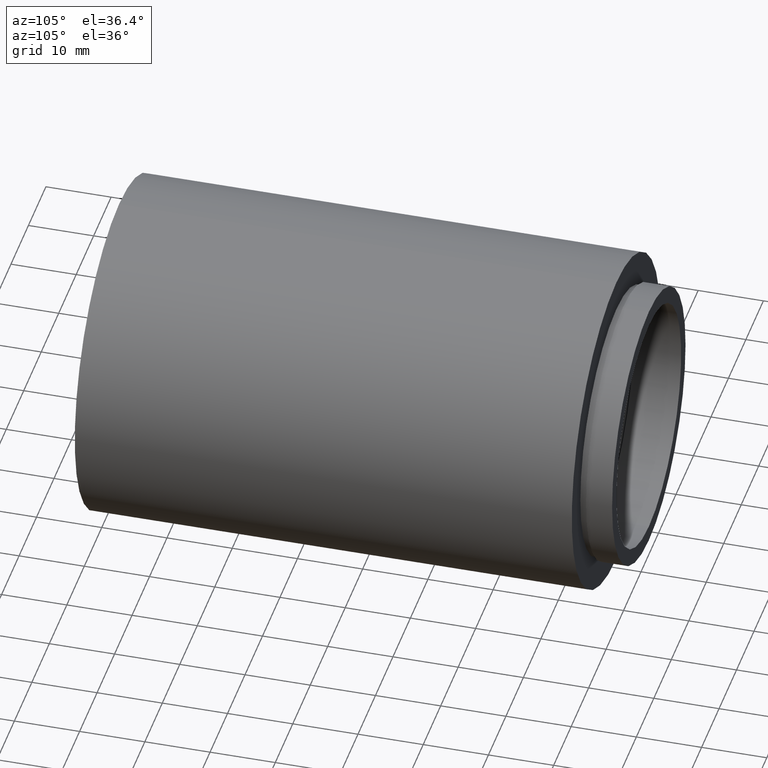
[diagram: clean part render]
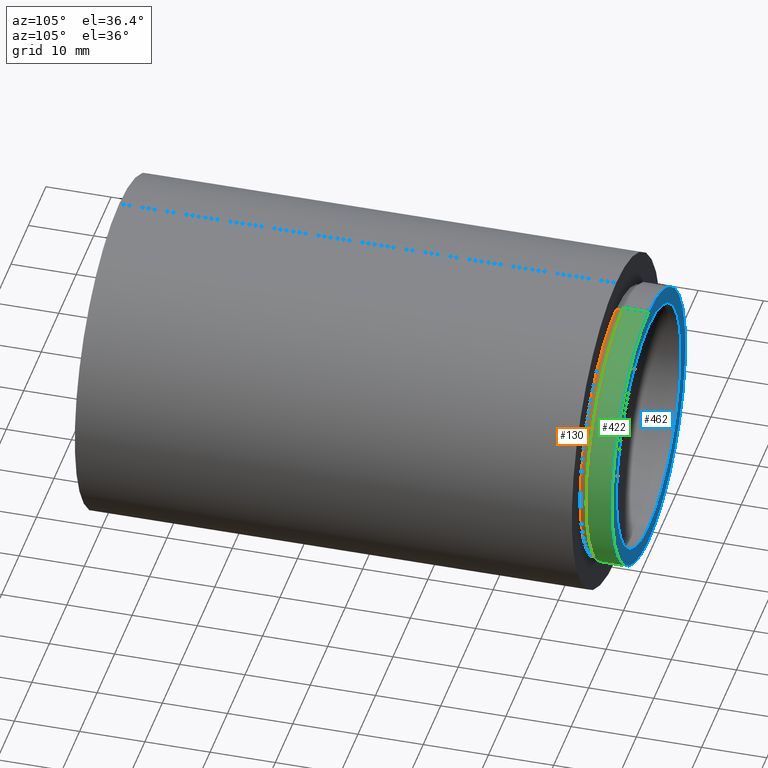
[diagram: same view with three faces highlighted in distinct colors, each labeled with its STEP entity id]
A machine part, auxiliary view with three faces highlighted in distinct colors.
Their STEP definitions:

[orange] entity #130 — the highlighted cylindrical surface (partial cylindrical patch) has radius 20.5 mm, axis along (-0, 1, -0).
#38 = VERTEX_POINT ( 'NONE', #540 ) ;
#43 = DIRECTION ( 'NONE',  ( -0.0000000000000000000, 1.000000000000000000, -0.0000000000000000000 ) ) ;
#72 = LINE ( 'NONE', #112, #342 ) ;
#98 = DIRECTION ( 'NONE',  ( -0.0000000000000000000, 1.000000000000000000, -0.0000000000000000000 ) ) ;
#112 = CARTESIAN_POINT ( 'NONE',  ( 0.0000000000000000000, 161.3761669434274500, 20.50000000000001100 ) ) ;
#114 = AXIS2_PLACEMENT_3D ( 'NONE', #526, #98, #567 ) ;
#119 = CARTESIAN_POINT ( 'NONE',  ( 0.0000000000000000000, 76.19999999999998900, 0.0000000000000000000 ) ) ;
#130 = ADVANCED_FACE ( 'NONE', ( #322 ), #387, .T. ) ;
#168 = DIRECTION ( 'NONE',  ( -0.0000000000000000000, 1.000000000000000000, -0.0000000000000000000 ) ) ;
#202 = VERTEX_POINT ( 'NONE', #593 ) ;
#203 = DIRECTION ( 'NONE',  ( -0.0000000000000000000, 1.000000000000000000, -0.0000000000000000000 ) ) ;
#215 = EDGE_CURVE ( 'NONE', #38, #608, #323, .T. ) ;
#243 = ORIENTED_EDGE ( 'NONE', *, *, #396, .F. ) ;
#249 = DIRECTION ( 'NONE',  ( 0.0000000000000000000, 0.0000000000000000000, 1.000000000000000000 ) ) ;
#256 = EDGE_CURVE ( 'NONE', #38, #202, #72, .T. ) ;
#277 = ORIENTED_EDGE ( 'NONE', *, *, #256, .F. ) ;
#289 = AXIS2_PLACEMENT_3D ( 'NONE', #306, #203, #249 ) ;
#290 = CARTESIAN_POINT ( 'NONE',  ( 2.510525938252075300E-015, 77.19999999999998900, -20.50000000000001100 ) ) ;
#306 = CARTESIAN_POINT ( 'NONE',  ( 0.0000000000000000000, 161.3761669434274500, 0.0000000000000000000 ) ) ;
#314 = EDGE_LOOP ( 'NONE', ( #538, #436, #243, #277 ) ) ;
#315 = CIRCLE ( 'NONE', #114, 20.50000000000001100 ) ;
#322 = FACE_OUTER_BOUND ( 'NONE', #314, .T. ) ;
#323 = CIRCLE ( 'NONE', #382, 20.50000000000001100 ) ;
#342 = VECTOR ( 'NONE', #168, 1000.000000000000000 ) ;
#377 = VERTEX_POINT ( 'NONE', #290 ) ;
#382 = AXIS2_PLACEMENT_3D ( 'NONE', #119, #503, #400 ) ;
#387 = CYLINDRICAL_SURFACE ( 'NONE', #289, 20.50000000000001100 ) ;
#396 = EDGE_CURVE ( 'NONE', #202, #377, #315, .T. ) ;
#400 = DIRECTION ( 'NONE',  ( 0.0000000000000000000, 0.0000000000000000000, 1.000000000000000000 ) ) ;
#429 = CARTESIAN_POINT ( 'NONE',  ( 2.510525938252075300E-015, 161.3761669434274500, -20.50000000000001100 ) ) ;
#436 = ORIENTED_EDGE ( 'NONE', *, *, #624, .T. ) ;
#503 = DIRECTION ( 'NONE',  ( -0.0000000000000000000, 1.000000000000000000, -0.0000000000000000000 ) ) ;
#526 = CARTESIAN_POINT ( 'NONE',  ( 0.0000000000000000000, 77.19999999999998900, 0.0000000000000000000 ) ) ;
#538 = ORIENTED_EDGE ( 'NONE', *, *, #215, .T. ) ;
#540 = CARTESIAN_POINT ( 'NONE',  ( 0.0000000000000000000, 76.19999999999998900, 20.50000000000001100 ) ) ;
#567 = DIRECTION ( 'NONE',  ( 0.0000000000000000000, 0.0000000000000000000, 1.000000000000000000 ) ) ;
#586 = LINE ( 'NONE', #429, #594 ) ;
#593 = CARTESIAN_POINT ( 'NONE',  ( 0.0000000000000000000, 77.19999999999998900, 20.50000000000001100 ) ) ;
#594 = VECTOR ( 'NONE', #43, 1000.000000000000000 ) ;
#607 = CARTESIAN_POINT ( 'NONE',  ( 2.510525938252075300E-015, 76.19999999999998900, -20.50000000000001100 ) ) ;
#608 = VERTEX_POINT ( 'NONE', #607 ) ;
#624 = EDGE_CURVE ( 'NONE', #608, #377, #586, .T. ) ;

[blue] entity #462 — the highlighted planar face has unit normal (0, -1, 0).
#5 = ORIENTED_EDGE ( 'NONE', *, *, #209, .T. ) ;
#10 = ORIENTED_EDGE ( 'NONE', *, *, #238, .F. ) ;
#18 = CARTESIAN_POINT ( 'NONE',  ( 0.0000000000000000000, 81.19999999999998900, 18.50000000000001100 ) ) ;
#32 = CARTESIAN_POINT ( 'NONE',  ( 2.571758278209443200E-015, 81.19999999999998900, -21.00000000000001100 ) ) ;
#57 = CARTESIAN_POINT ( 'NONE',  ( 2.265596578422604600E-015, 81.19999999999998900, -18.50000000000001100 ) ) ;
#60 = VERTEX_POINT ( 'NONE', #57 ) ;
#62 = ORIENTED_EDGE ( 'NONE', *, *, #523, .F. ) ;
#83 = CARTESIAN_POINT ( 'NONE',  ( 0.0000000000000000000, 81.19999999999998900, 0.0000000000000000000 ) ) ;
#86 = CARTESIAN_POINT ( 'NONE',  ( 0.0000000000000000000, 81.19999999999998900, 21.00000000000001100 ) ) ;
#91 = DIRECTION ( 'NONE',  ( 0.0000000000000000000, -0.0000000000000000000, -1.000000000000000000 ) ) ;
#106 = FACE_OUTER_BOUND ( 'NONE', #566, .T. ) ;
#125 = CARTESIAN_POINT ( 'NONE',  ( 0.0000000000000000000, 81.19999999999998900, 0.0000000000000000000 ) ) ;
#155 = AXIS2_PLACEMENT_3D ( 'NONE', #169, #316, #407 ) ;
#169 = CARTESIAN_POINT ( 'NONE',  ( 0.0000000000000000000, 81.19999999999998900, 0.0000000000000000000 ) ) ;
#209 = EDGE_CURVE ( 'NONE', #301, #370, #443, .T. ) ;
#219 = VERTEX_POINT ( 'NONE', #18 ) ;
#238 = EDGE_CURVE ( 'NONE', #60, #219, #587, .T. ) ;
#242 = AXIS2_PLACEMENT_3D ( 'NONE', #83, #410, #513 ) ;
#260 = CARTESIAN_POINT ( 'NONE',  ( 0.0000000000000000000, 81.19999999999998900, 0.0000000000000000000 ) ) ;
#286 = FACE_BOUND ( 'NONE', #455, .T. ) ;
#288 = CARTESIAN_POINT ( 'NONE',  ( 18.50000000000001100, 81.19999999999998900, 0.0000000000000000000 ) ) ;
#301 = VERTEX_POINT ( 'NONE', #32 ) ;
#305 = CIRCLE ( 'NONE', #242, 21.00000000000001100 ) ;
#312 = DIRECTION ( 'NONE',  ( 0.0000000000000000000, 0.0000000000000000000, 1.000000000000000000 ) ) ;
#316 = DIRECTION ( 'NONE',  ( -0.0000000000000000000, 1.000000000000000000, -0.0000000000000000000 ) ) ;
#321 = EDGE_CURVE ( 'NONE', #370, #301, #305, .T. ) ;
#370 = VERTEX_POINT ( 'NONE', #86 ) ;
#380 = DIRECTION ( 'NONE',  ( 0.0000000000000000000, -1.000000000000000000, 0.0000000000000000000 ) ) ;
#402 = AXIS2_PLACEMENT_3D ( 'NONE', #125, #458, #561 ) ;
#407 = DIRECTION ( 'NONE',  ( 0.0000000000000000000, 0.0000000000000000000, 1.000000000000000000 ) ) ;
#410 = DIRECTION ( 'NONE',  ( -0.0000000000000000000, 1.000000000000000000, -0.0000000000000000000 ) ) ;
#412 = AXIS2_PLACEMENT_3D ( 'NONE', #260, #589, #312 ) ;
#425 = PLANE ( 'NONE',  #541 ) ;
#443 = CIRCLE ( 'NONE', #155, 21.00000000000001100 ) ;
#455 = EDGE_LOOP ( 'NONE', ( #62, #10 ) ) ;
#458 = DIRECTION ( 'NONE',  ( -0.0000000000000000000, 1.000000000000000000, -0.0000000000000000000 ) ) ;
#459 = CIRCLE ( 'NONE', #402, 18.50000000000001100 ) ;
#462 = ADVANCED_FACE ( 'NONE', ( #286, #106 ), #425, .F. ) ;
#513 = DIRECTION ( 'NONE',  ( 0.0000000000000000000, 0.0000000000000000000, 1.000000000000000000 ) ) ;
#523 = EDGE_CURVE ( 'NONE', #219, #60, #459, .T. ) ;
#541 = AXIS2_PLACEMENT_3D ( 'NONE', #288, #380, #91 ) ;
#543 = ORIENTED_EDGE ( 'NONE', *, *, #321, .T. ) ;
#561 = DIRECTION ( 'NONE',  ( 0.0000000000000000000, 0.0000000000000000000, 1.000000000000000000 ) ) ;
#566 = EDGE_LOOP ( 'NONE', ( #543, #5 ) ) ;
#587 = CIRCLE ( 'NONE', #412, 18.50000000000001100 ) ;
#589 = DIRECTION ( 'NONE',  ( -0.0000000000000000000, 1.000000000000000000, -0.0000000000000000000 ) ) ;

[green] entity #422 — the highlighted cylindrical surface (partial cylindrical patch) has radius 21 mm, axis along (-0, 1, -0).
#15 = CARTESIAN_POINT ( 'NONE',  ( 2.571758278209443200E-015, 161.3761669434274500, -21.00000000000001100 ) ) ;
#32 = CARTESIAN_POINT ( 'NONE',  ( 2.571758278209443200E-015, 81.19999999999998900, -21.00000000000001100 ) ) ;
#42 = DIRECTION ( 'NONE',  ( -0.0000000000000000000, 1.000000000000000000, -0.0000000000000000000 ) ) ;
#58 = CARTESIAN_POINT ( 'NONE',  ( 0.0000000000000000000, 77.19999999999998900, 0.0000000000000000000 ) ) ;
#65 = CARTESIAN_POINT ( 'NONE',  ( 0.0000000000000000000, 77.19999999999998900, 21.00000000000001100 ) ) ;
#71 = LINE ( 'NONE', #81, #82 ) ;
#74 = EDGE_CURVE ( 'NONE', #296, #406, #475, .T. ) ;
#81 = CARTESIAN_POINT ( 'NONE',  ( 0.0000000000000000000, 161.3761669434274500, 21.00000000000001100 ) ) ;
#82 = VECTOR ( 'NONE', #613, 1000.000000000000000 ) ;
#83 = CARTESIAN_POINT ( 'NONE',  ( 0.0000000000000000000, 81.19999999999998900, 0.0000000000000000000 ) ) ;
#85 = AXIS2_PLACEMENT_3D ( 'NONE', #476, #42, #93 ) ;
#86 = CARTESIAN_POINT ( 'NONE',  ( 0.0000000000000000000, 81.19999999999998900, 21.00000000000001100 ) ) ;
#93 = DIRECTION ( 'NONE',  ( 0.0000000000000000000, 0.0000000000000000000, 1.000000000000000000 ) ) ;
#148 = CYLINDRICAL_SURFACE ( 'NONE', #85, 21.00000000000001100 ) ;
#242 = AXIS2_PLACEMENT_3D ( 'NONE', #83, #410, #513 ) ;
#244 = ORIENTED_EDGE ( 'NONE', *, *, #74, .T. ) ;
#270 = DIRECTION ( 'NONE',  ( -0.0000000000000000000, 1.000000000000000000, -0.0000000000000000000 ) ) ;
#276 = EDGE_LOOP ( 'NONE', ( #244, #405, #537, #320 ) ) ;
#296 = VERTEX_POINT ( 'NONE', #65 ) ;
#301 = VERTEX_POINT ( 'NONE', #32 ) ;
#305 = CIRCLE ( 'NONE', #242, 21.00000000000001100 ) ;
#320 = ORIENTED_EDGE ( 'NONE', *, *, #597, .F. ) ;
#321 = EDGE_CURVE ( 'NONE', #370, #301, #305, .T. ) ;
#351 = DIRECTION ( 'NONE',  ( 0.0000000000000000000, 0.0000000000000000000, 1.000000000000000000 ) ) ;
#370 = VERTEX_POINT ( 'NONE', #86 ) ;
#405 = ORIENTED_EDGE ( 'NONE', *, *, #508, .T. ) ;
#406 = VERTEX_POINT ( 'NONE', #574 ) ;
#410 = DIRECTION ( 'NONE',  ( -0.0000000000000000000, 1.000000000000000000, -0.0000000000000000000 ) ) ;
#417 = FACE_OUTER_BOUND ( 'NONE', #276, .T. ) ;
#422 = ADVANCED_FACE ( 'NONE', ( #417 ), #148, .T. ) ;
#475 = CIRCLE ( 'NONE', #583, 21.00000000000001100 ) ;
#476 = CARTESIAN_POINT ( 'NONE',  ( 0.0000000000000000000, 161.3761669434274500, 0.0000000000000000000 ) ) ;
#508 = EDGE_CURVE ( 'NONE', #406, #301, #531, .T. ) ;
#513 = DIRECTION ( 'NONE',  ( 0.0000000000000000000, 0.0000000000000000000, 1.000000000000000000 ) ) ;
#531 = LINE ( 'NONE', #15, #578 ) ;
#537 = ORIENTED_EDGE ( 'NONE', *, *, #321, .F. ) ;
#542 = DIRECTION ( 'NONE',  ( -0.0000000000000000000, 1.000000000000000000, -0.0000000000000000000 ) ) ;
#574 = CARTESIAN_POINT ( 'NONE',  ( 2.571758278209443200E-015, 77.19999999999998900, -21.00000000000001100 ) ) ;
#578 = VECTOR ( 'NONE', #270, 1000.000000000000000 ) ;
#583 = AXIS2_PLACEMENT_3D ( 'NONE', #58, #542, #351 ) ;
#597 = EDGE_CURVE ( 'NONE', #296, #370, #71, .T. ) ;
#613 = DIRECTION ( 'NONE',  ( -0.0000000000000000000, 1.000000000000000000, -0.0000000000000000000 ) ) ;